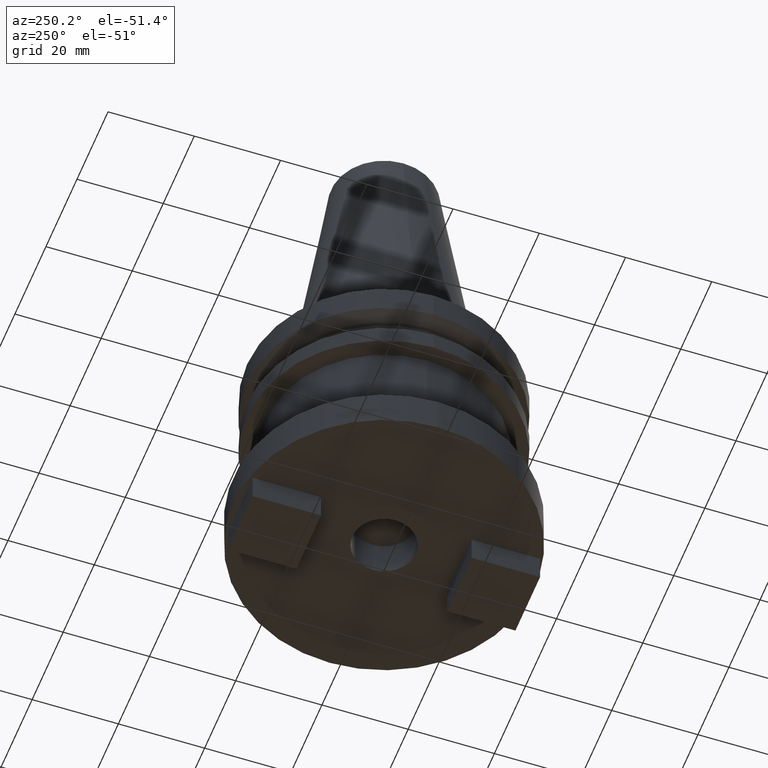
[diagram: clean part render]
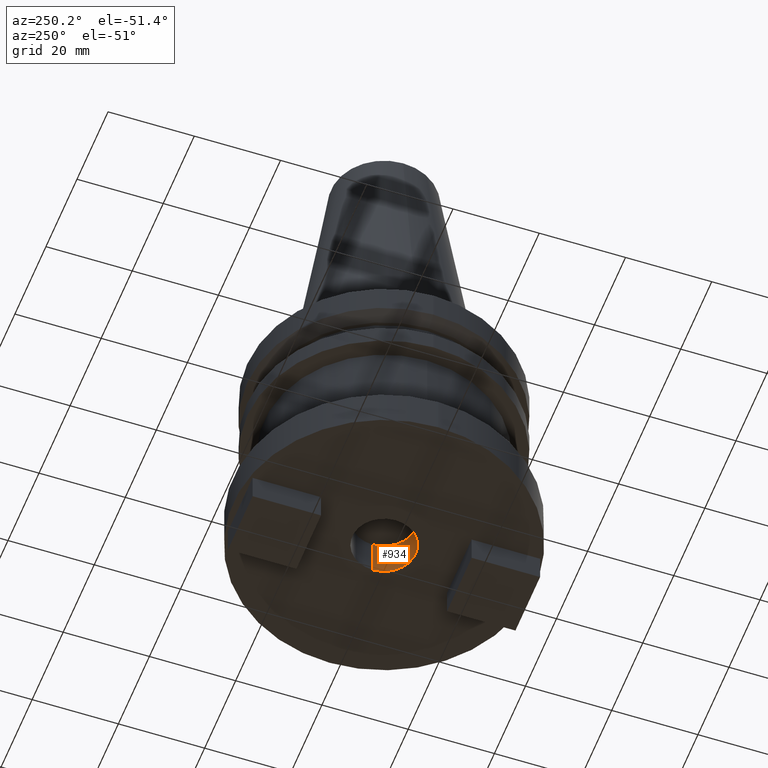
[diagram: same view with one face highlighted and labeled with its STEP entity id]
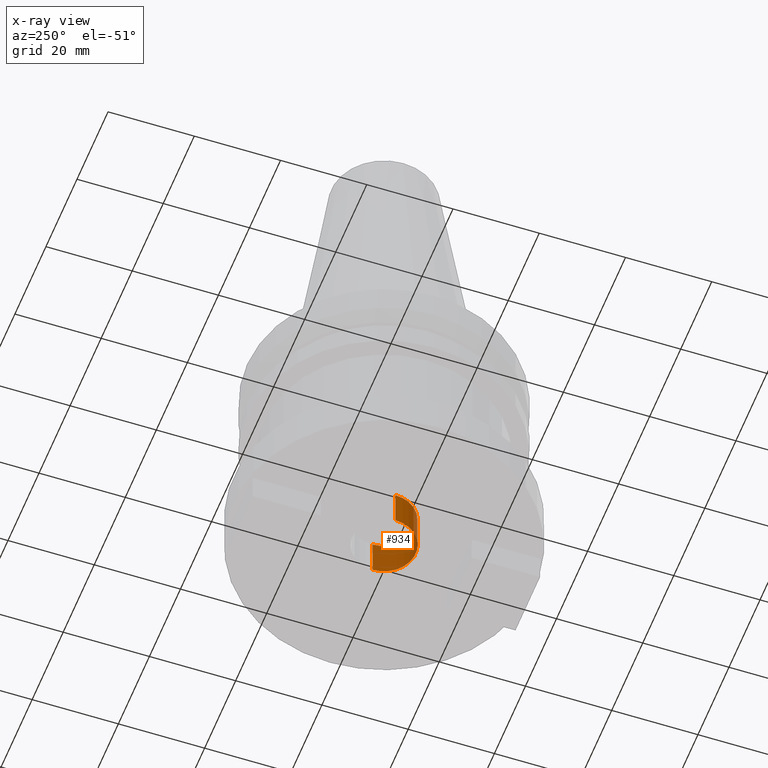
[diagram: x-ray of the same camera — body ghosted, the highlighted face saturated]
A machine part, auxiliary view. The second image highlights one B-rep face of the part: STEP entity #934.
The next image is the same camera in x-ray: the body ghosted, the highlighted face saturated — about 0% of this face is hidden behind the body in this view.
In plain terms, the highlighted cylindrical surface (edge-blend (fillet) strip) has radius 7.34 mm, axis along (-0, -0, 1).
Its self-contained STEP definition (entity closure, byte-faithful):
#59 = CYLINDRICAL_SURFACE ( 'NONE', #225, 7.340000000000000746 ) ;
#85 = LINE ( 'NONE', #412, #460 ) ;
#120 = ORIENTED_EDGE ( 'NONE', *, *, #1085, .F. ) ;
#127 = VERTEX_POINT ( 'NONE', #1018 ) ;
#144 = VERTEX_POINT ( 'NONE', #849 ) ;
#178 = LINE ( 'NONE', #847, #652 ) ;
#190 = ORIENTED_EDGE ( 'NONE', *, *, #1059, .F. ) ;
#200 = FACE_OUTER_BOUND ( 'NONE', #1045, .T. ) ;
#215 = DIRECTION ( 'NONE',  ( -0.000000000000000000, -0.000000000000000000, 1.000000000000000000 ) ) ;
#225 = AXIS2_PLACEMENT_3D ( 'NONE', #387, #215, #528 ) ;
#228 = CARTESIAN_POINT ( 'NONE',  ( 7.340000000000000746, 0.000000000000000000, -42.00000000000000711 ) ) ;
#322 = EDGE_CURVE ( 'NONE', #127, #857, #396, .T. ) ;
#353 = VERTEX_POINT ( 'NONE', #1088 ) ;
#387 = CARTESIAN_POINT ( 'NONE',  ( 0.000000000000000000, 0.000000000000000000, 0.000000000000000000 ) ) ;
#396 = CIRCLE ( 'NONE', #1074, 7.340000000000000746 ) ;
#412 = CARTESIAN_POINT ( 'NONE',  ( -7.340000000000000746, 8.988907505741573837E-16, 0.000000000000000000 ) ) ;
#431 = DIRECTION ( 'NONE',  ( -0.000000000000000000, -0.000000000000000000, 1.000000000000000000 ) ) ;
#460 = VECTOR ( 'NONE', #738, 1000.000000000000000 ) ;
#470 = EDGE_CURVE ( 'NONE', #144, #127, #85, .T. ) ;
#528 = DIRECTION ( 'NONE',  ( 1.000000000000000000, 0.000000000000000000, 0.000000000000000000 ) ) ;
#573 = DIRECTION ( 'NONE',  ( -0.000000000000000000, -0.000000000000000000, 1.000000000000000000 ) ) ;
#612 = CIRCLE ( 'NONE', #633, 7.339999999999999858 ) ;
#633 = AXIS2_PLACEMENT_3D ( 'NONE', #992, #573, #917 ) ;
#652 = VECTOR ( 'NONE', #431, 1000.000000000000000 ) ;
#667 = ORIENTED_EDGE ( 'NONE', *, *, #322, .T. ) ;
#722 = CARTESIAN_POINT ( 'NONE',  ( 0.000000000000000000, 0.000000000000000000, -42.00000000000000711 ) ) ;
#731 = DIRECTION ( 'NONE',  ( -0.000000000000000000, -0.000000000000000000, 1.000000000000000000 ) ) ;
#738 = DIRECTION ( 'NONE',  ( -0.000000000000000000, -0.000000000000000000, 1.000000000000000000 ) ) ;
#823 = DIRECTION ( 'NONE',  ( 1.000000000000000000, 0.000000000000000000, 0.000000000000000000 ) ) ;
#847 = CARTESIAN_POINT ( 'NONE',  ( 7.340000000000000746, 0.000000000000000000, 0.000000000000000000 ) ) ;
#849 = CARTESIAN_POINT ( 'NONE',  ( -7.339999999999999858, 8.988907505741571865E-16, -50.79999999999999716 ) ) ;
#857 = VERTEX_POINT ( 'NONE', #228 ) ;
#917 = DIRECTION ( 'NONE',  ( 1.000000000000000000, 0.000000000000000000, 0.000000000000000000 ) ) ;
#934 = ADVANCED_FACE ( 'NONE', ( #200 ), #59, .F. ) ;
#992 = CARTESIAN_POINT ( 'NONE',  ( 0.000000000000000000, 0.000000000000000000, -50.79999999999999716 ) ) ;
#1018 = CARTESIAN_POINT ( 'NONE',  ( -7.340000000000000746, 8.988907505741573837E-16, -42.00000000000000711 ) ) ;
#1045 = EDGE_LOOP ( 'NONE', ( #190, #1072, #667, #120 ) ) ;
#1059 = EDGE_CURVE ( 'NONE', #144, #353, #612, .T. ) ;
#1072 = ORIENTED_EDGE ( 'NONE', *, *, #470, .T. ) ;
#1074 = AXIS2_PLACEMENT_3D ( 'NONE', #722, #731, #823 ) ;
#1085 = EDGE_CURVE ( 'NONE', #353, #857, #178, .T. ) ;
#1088 = CARTESIAN_POINT ( 'NONE',  ( 7.339999999999999858, 0.000000000000000000, -50.79999999999999716 ) ) ;